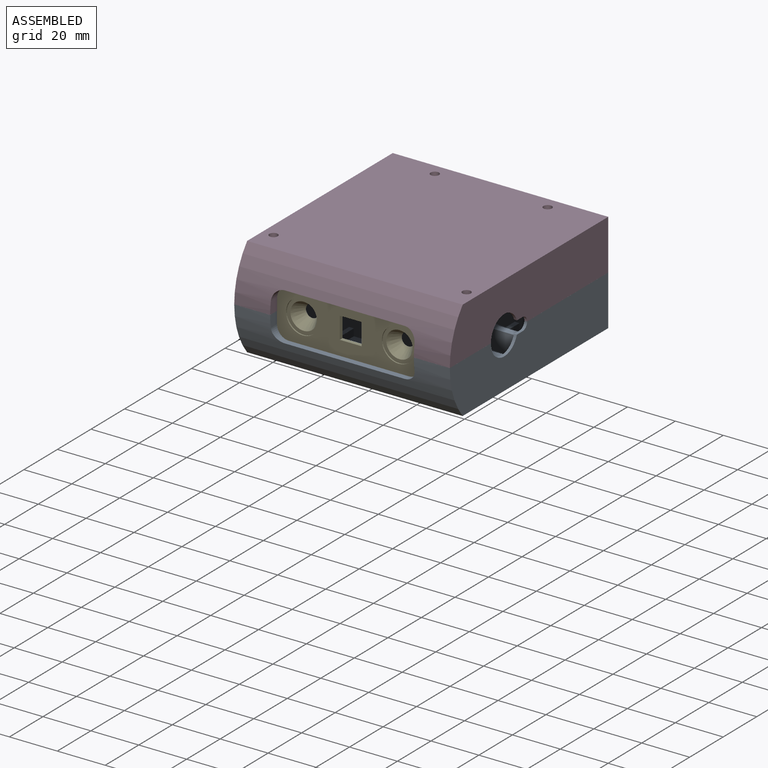
[diagram: assembled view]
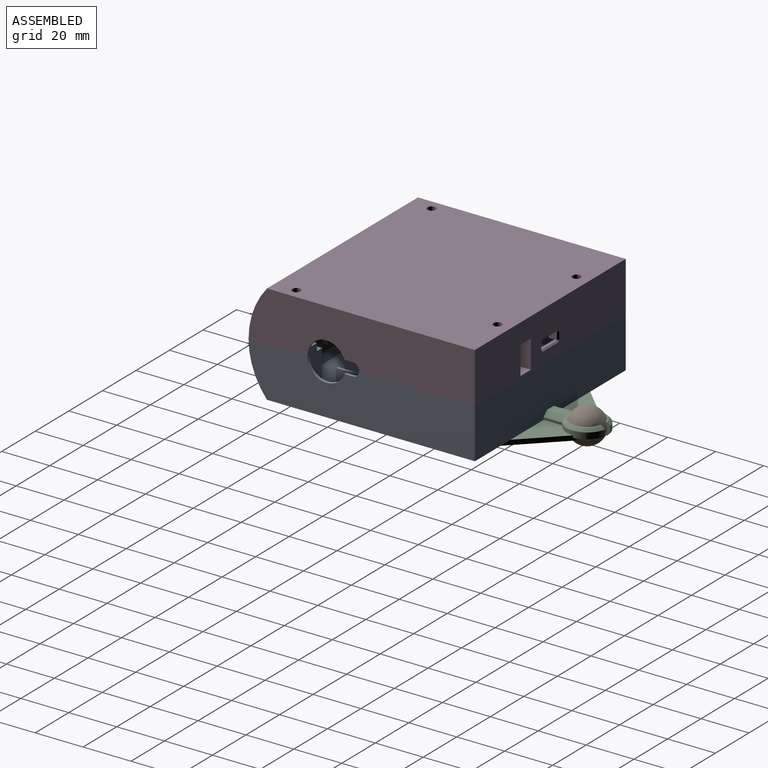
[diagram: assembled view, second angle]
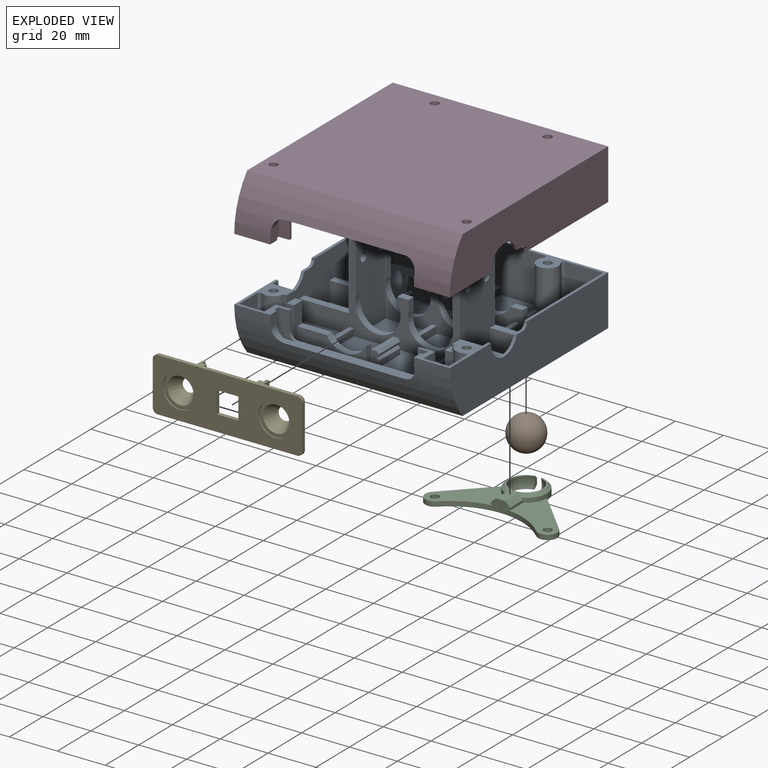
[diagram: exploded view]
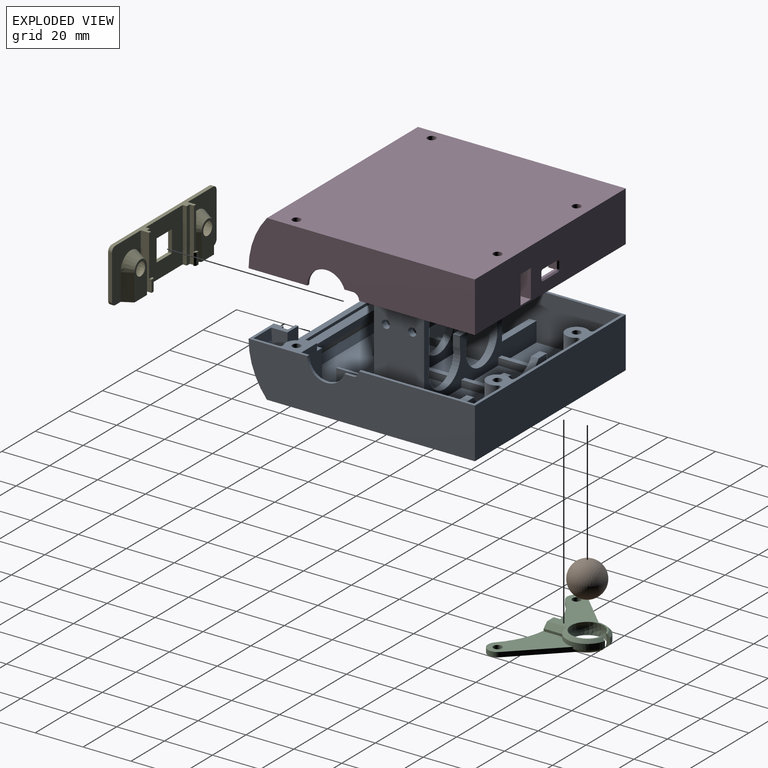
[diagram: exploded view, second angle]
ASSEMBLY  parts=5 mates=4
PART A: 187 faces, bbox 90x94.5x40 mm
  f0: plane 64.8x28.83mm, normal (0,0,1), area 1661.4mm2, adj f1,f3,f4,f19,f23,f54,f55,f59
  f1: plane 87.6x38.8mm, normal (0,-1,0), area 829mm2, adj f0,f23,f56,f58,f59,f74,f112,f123
  f2: plane 12.8x0.5mm, normal (-1,0,0), area 6.4mm2, adj f3,f172,f184,f185
  f3: plane 6x2mm, normal (0,-1,0), area 10.6mm2, adj f0,f2,f54,f55,f171,f172,f173,f185
  f4: plane 28.73x8.15mm, normal (0,-1,0), area 172mm2, adj f0,f16,f17,f18,f19,f20,f153,f154
  f5: plane 20.6x15mm, normal (0,0,1), area 309mm2, adj f7,f23,f126,f142
  f6: plane 26x0.3mm, normal (0,-1,0), area 7.3mm2, adj f127,f128,f157,f169
  f7: plane 20.6x8.15mm, normal (0,-1,0), area 167.9mm2, adj f5,f23,f125,f126
  f8: plane 26x0.3mm, normal (0,1,0), area 7.3mm2, adj f146,f147,f157,f169
  f9: plane 40.9x19.8mm, normal (0,1,0), area 265.2mm2, adj f10,f21,f24,f25,f26,f147,f148,f149
  f10: plane 19.45x15mm, normal (0,0,1), area 291.7mm2, adj f9,f13,f24,f156
  f11: plane 20.6x8.15mm, normal (0,-1,0), area 167.9mm2, adj f22,f74,f123,f124
  f12: plane 26x0.3mm, normal (0,-1,0), area 7.3mm2, adj f122,f132,f156,f168
  f13: plane 40.9x19.8mm, normal (0,-1,0), area 265.2mm2, adj f10,f21,f24,f25,f26,f128,f129,f130
  f14: plane 20.6x8.15mm, normal (0,1,0), area 167.9mm2, adj f22,f74,f123,f144
  f15: plane 26x0.3mm, normal (0,1,0), area 7.3mm2, adj f143,f151,f156,f168
  f16: plane 20.8x10.03mm, normal (0,0,1), area 157.2mm2, adj f4,f17,f18,f61,f67,f88,f89,f95
  f17: plane 16.8x4.96mm, normal (1,0,0), area 59.2mm2, adj f4,f16,f88,f90,f91,f153
  f18: plane 11.96x3mm, normal (-1,0,0), area 33.4mm2, adj f4,f16,f20,f60,f61
  f19: plane 11.96x3mm, normal (1,0,0), area 33.4mm2, adj f0,f4,f20,f60,f75
  f20: plane 11.76x2mm, normal (0,0,1), area 23.5mm2, adj f4,f18,f19,f60
  f21: plane 19.45x15mm, normal (0,0,1), area 291.7mm2, adj f9,f13,f25,f157
  f22: plane 20.6x15mm, normal (0,0,1), area 309mm2, adj f11,f14,f74,f123
  f23: plane 72.09x19.8mm, normal (-1,0,0), area 1264.3mm2, adj f0,f1,f5,f7,f29,f53,f66,f69
  f24: plane 15x3mm, normal (-1,0,0), area 45mm2, adj f9,f10,f13,f26
  f25: plane 15x3mm, normal (1,0,0), area 45mm2, adj f9,f13,f21,f26
  f26: plane 15x2mm, normal (0,0,1), area 30mm2, adj f9,f13,f24,f25
  f27: plane 20x17.25mm, normal (0,0,1), area 333.9mm2, adj f31,f38,f52,f116,f118,f134
  f28: plane 20x17.25mm, normal (0,0,1), area 333.9mm2, adj f35,f37,f52,f113,f120,f134
  f29: plane 35.25x20.8mm, normal (0,0,1), area 691.7mm2, adj f23,f32,f43,f53,f116,f117,f121,f134
  f30: plane 35.25x20.8mm, normal (0,0,1), area 691.7mm2, adj f34,f45,f57,f74,f113,f119,f121,f134
  f31: plane 9.24x3mm, normal (-1,0,0), area 27.7mm2, adj f27,f33,f116,f134
  f32: plane 8.48x3mm, normal (1,0,0), area 25.4mm2, adj f29,f33,f116,f134
  f33: plane 9.24x2mm, normal (0,0,1), area 17.5mm2, adj f31,f32,f116,f134
  f34: plane 8.48x3mm, normal (-1,0,0), area 25.4mm2, adj f30,f36,f113,f134
  f35: plane 9.24x3mm, normal (1,0,0), area 27.7mm2, adj f28,f36,f113,f134
  f36: plane 9.24x2mm, normal (0,0,1), area 17.5mm2, adj f34,f35,f113,f134
  f37: plane 17.25x3mm, normal (-1,0,0), area 51.8mm2, adj f28,f39,f52,f134
  f38: plane 17.25x3mm, normal (1,0,0), area 51.8mm2, adj f27,f39,f52,f134
  f39: plane 17.25x2mm, normal (0,0,1), area 34.5mm2, adj f37,f38,f52,f134
  f40: plane 20x15mm, normal (0,0,1), area 300mm2, adj f42,f49,f121,f135
  f41: plane 20x15mm, normal (0,0,1), area 300mm2, adj f46,f48,f121,f135
  f42: plane 15x3mm, normal (-1,0,0), area 45mm2, adj f40,f44,f121,f135
  f43: plane 15x3mm, normal (1,0,0), area 45mm2, adj f29,f44,f121,f135
  f44: plane 15x2mm, normal (0,0,1), area 30mm2, adj f42,f43,f121,f135
  f45: plane 15x3mm, normal (-1,0,0), area 45mm2, adj f30,f47,f121,f135
  f46: plane 15x3mm, normal (1,0,0), area 45mm2, adj f41,f47,f121,f135
  f47: plane 15x2mm, normal (0,0,1), area 30mm2, adj f45,f46,f121,f135
  f48: plane 15x3mm, normal (-1,0,0), area 45mm2, adj f41,f50,f121,f135
  f49: plane 15x3mm, normal (1,0,0), area 45mm2, adj f40,f50,f121,f135
  f50: plane 15x2mm, normal (0,0,1), area 30mm2, adj f48,f49,f121,f135
  f51: plane 90x86.84mm, normal (0,0,-1), area 7777.1mm2, adj f70,f71,f72,f73,f82,f87,f114,f115
  f52: plane 38.32x19.8mm, normal (0,-1,0), area 752.8mm2, adj f27,f28,f37,f38,f39,f69,f118,f120
  f53: plane 19.8x15.85mm, normal (0,-1,0), area 313.8mm2, adj f23,f29,f69,f117
  f54: plane 12.8x2.54mm, normal (-1,0,0), area 32.5mm2, adj f0,f3,f173,f184
  f55: plane 12.8x6mm, normal (1,0,0), area 76.8mm2, adj f0,f3,f171,f184
  f56: plane 20.8x15.84mm, normal (0,0,1), area 329.1mm2, adj f1,f58,f74,f90,f152,f155
  f57: plane 19.8x15.85mm, normal (0,-1,0), area 313.8mm2, adj f30,f69,f74,f119
  f58: plane 15.8x3mm, normal (-1,0,0), area 47.4mm2, adj f1,f56,f112,f155
  f59: plane 15.8x3mm, normal (1,0,0), area 47.4mm2, adj f0,f1,f112,f155
  f60: plane 66.4x3.15mm, normal (0,0.88,-0.48), area 235.2mm2, adj f18,f19,f20,f61,f62,f75,f99,f100
  f61: cylinder r=31.42mm len=20.8mm, axis (-1,0,0), area 260.5mm2, adj f16,f18,f60,f65,f67,f100
  f62: plane 66.4x14.01mm, normal (0,1,0), area 335.7mm2, adj f60,f63,f64,f65,f66,f97,f98,f99
  f63: cylinder r=3mm len=3mm, axis (0,1,0), area 5.6mm2, adj f62,f97,f103,f110
  f64: cylinder r=3mm len=3mm, axis (0,1,0), area 5.6mm2, adj f62,f98,f102,f111
  f65: plane 24.51x18.3mm, normal (0,0,1), area 131.7mm2, adj f61,f62,f67,f70,f73,f74,f76,f87
  f66: plane 24.51x18.3mm, normal (0,0,1), area 131.7mm2, adj f23,f62,f68,f71,f73,f75,f81,f82
  f67: plane 19.8x10.65mm, normal (1,0,0), area 166.8mm2, adj f16,f61,f65,f95
  f68: plane 19.8x10.65mm, normal (-1,0,0), area 166.8mm2, adj f0,f66,f75,f96
  f69: plane 90x48.36mm, normal (0,0,1), area 333.8mm2, adj f23,f52,f53,f57,f70,f71,f72,f74
  f70: plane 94.5x21mm, normal (-1,0,0), area 1819.6mm2, adj f51,f65,f69,f72,f73,f76,f77,f78
  f71: plane 94.5x21mm, normal (1,0,0), area 1819.6mm2, adj f51,f66,f69,f72,f73,f79,f80,f81
  f72: plane 90x21mm, normal (0,1,0), area 1890mm2, adj f51,f69,f70,f71
  f73: cylinder r=32.62mm len=90mm, axis (-1,0,0), area 1469.3mm2, adj f51,f65,f66,f70,f71,f101,f104,f105
  f74: plane 72.09x19.8mm, normal (1,0,0), area 1264.3mm2, adj f1,f11,f14,f22,f30,f56,f57,f65
  f75: cylinder r=31.42mm len=64.8mm, axis (-1,0,0), area 406.5mm2, adj f0,f19,f60,f66,f68,f99,f162,f163
  f76: cylinder r=7.99mm len=15.52mm, axis (-1,0,0), area 26.9mm2, adj f65,f70,f74,f77
  f77: plane 3.46x1.2mm, normal (0,0,1), area 4.1mm2, adj f70,f74,f76,f78
  f78: cylinder r=2.65mm len=2.65mm, axis (-1,0,0), area 5mm2, adj f69,f70,f74,f77
  f79: cylinder r=2.65mm len=2.65mm, axis (-1,0,0), area 5mm2, adj f23,f69,f71,f80
  f80: plane 3.46x1.2mm, normal (0,0,1), area 4.1mm2, adj f23,f71,f79,f81
  f81: cylinder r=7.99mm len=15.52mm, axis (-1,0,0), area 26.9mm2, adj f23,f66,f71,f80
  f82: cylinder r=1.75mm len=21mm, axis (0,0,1), area 230.9mm2, adj f51,f66
  f83: plane 19.8x12.3mm, normal (0,1,0), area 234.5mm2, adj f0,f23,f66,f86,f93,f94
  f84: cylinder r=4.5mm len=19.8mm, axis (0,0,1), area 172.1mm2, adj f0,f66,f85,f96
  f85: plane 19.8x4.33mm, normal (0,-1,0), area 76.7mm2, adj f0,f66,f84,f86,f93,f94
  f86: plane 16.8x4.96mm, normal (-1,0,0), area 83.4mm2, adj f0,f83,f85,f93
  f87: cylinder r=1.75mm len=21mm, axis (0,0,1), area 230.9mm2, adj f51,f65
  f88: plane 19.8x4.33mm, normal (0,-1,0), area 76.7mm2, adj f16,f17,f65,f89,f91,f92
  f89: cylinder r=4.5mm len=19.8mm, axis (0,0,1), area 172.1mm2, adj f16,f65,f88,f95
  f90: plane 19.8x12.3mm, normal (0,1,0), area 234.5mm2, adj f17,f56,f65,f74,f91,f92,f152
  f91: plane 4.96x3mm, normal (0,0,1), area 14.9mm2, adj f17,f88,f90,f92
  f92: plane 4.96x3mm, normal (1,0,0), area 14.9mm2, adj f65,f88,f90,f91
  f93: plane 4.96x3mm, normal (0,0,1), area 14.9mm2, adj f83,f85,f86,f94
  f94: plane 4.96x3mm, normal (-1,0,0), area 14.9mm2, adj f66,f83,f85,f93
  f95: cylinder r=1mm len=19.8mm, axis (0,0,1), area 40.4mm2, adj f16,f65,f67,f89
  f96: cylinder r=1mm len=19.8mm, axis (0,0,1), area 40.4mm2, adj f0,f66,f68,f84
  f97: plane 8.2x1.2mm, normal (1,0,0), area 9.8mm2, adj f62,f63,f65,f103
  f98: plane 8.2x1.2mm, normal (-1,0,0), area 9.8mm2, adj f62,f64,f66,f102
  f99: plane 17.15x6.8mm, normal (1,0,0), area 85.8mm2, adj f60,f62,f66,f75
  f100: plane 17.15x6.8mm, normal (-1,0,0), area 85.8mm2, adj f60,f61,f62,f65
  f101: plane 50x2.53mm, normal (0,0,1), area 126.5mm2, adj f73,f106,f158,f159
  f102: plane 11.2x7.5mm, normal (0,-1,0), area 52.3mm2, adj f64,f66,f98,f107,f108
  f103: plane 11.2x7.5mm, normal (0,-1,0), area 52.3mm2, adj f63,f65,f97,f108,f109
  f104: plane 5x4.1mm, normal (1,0,0), area 19.9mm2, adj f65,f73,f106,f158
  f105: plane 5x4.1mm, normal (-1,0,0), area 19.9mm2, adj f66,f73,f106,f159
  f106: plane 62.4x11.2mm, normal (0,1,0), area 109.6mm2, adj f65,f66,f101,f104,f105,f107,f108,f109
  f107: plane 11.2x2.7mm, normal (-1,0,0), area 30.2mm2, adj f66,f102,f106,f108
  f108: plane 62.4x3.9mm, normal (0,0,1), area 225.4mm2, adj f62,f102,f103,f106,f107,f109,f110,f111
  f109: plane 11.2x2.7mm, normal (1,0,0), area 30.2mm2, adj f65,f103,f106,f108
  f110: plane 1.2x0mm, normal (1,0,0), area 0mm2, adj f62,f63,f108
  f111: plane 1.2x0mm, normal (-1,0,0), area 0mm2, adj f62,f64,f108
  f112: plane 15.8x2mm, normal (0,0,1), area 31.6mm2, adj f1,f58,f59,f155
  f113: cylinder r=4.5mm len=19.8mm, axis (0,0,1), area 388.2mm2, adj f28,f30,f34,f35,f36,f69,f119,f120
  f114: cylinder r=1.75mm len=21mm, axis (0,0,1), area 230.9mm2, adj f51,f69
  f115: cylinder r=1.75mm len=21mm, axis (0,0,1), area 230.9mm2, adj f51,f69
  f116: cylinder r=4.5mm len=19.8mm, axis (0,0,1), area 388.2mm2, adj f27,f29,f31,f32,f33,f69,f117,f118
  f117: cylinder r=1mm len=19.8mm, axis (0,0,1), area 43.9mm2, adj f29,f53,f69,f116
  f118: cylinder r=1mm len=19.8mm, axis (0,0,1), area 43.9mm2, adj f27,f52,f69,f116
  f119: cylinder r=1mm len=19.8mm, axis (0,0,1), area 43.9mm2, adj f30,f57,f69,f113
  f120: cylinder r=1mm len=19.8mm, axis (0,0,1), area 43.9mm2, adj f28,f52,f69,f113
  f121: plane 87.6x38.8mm, normal (0,1,0), area 817mm2, adj f23,f29,f30,f40,f41,f42,f43,f44
  f122: plane 23.64x3mm, normal (1,0,0), area 70.9mm2, adj f12,f121,f132,f168
  f123: plane 38.8x21mm, normal (-1,0,0), area 747.7mm2, adj f1,f11,f14,f22,f121,f124,f144,f168
  f124: plane 20.6x3mm, normal (0,0,1), area 61.8mm2, adj f11,f74,f121,f123
  f125: plane 20.6x3mm, normal (0,0,1), area 61.8mm2, adj f7,f23,f121,f126
  f126: plane 38.8x21mm, normal (1,0,0), area 747.7mm2, adj f1,f5,f7,f121,f125,f142,f145,f169
  f127: plane 23.64x3mm, normal (-1,0,0), area 70.9mm2, adj f6,f121,f128,f169
  f128: cylinder r=9.45mm len=18.9mm, axis (0,-1,0), area 103.4mm2, adj f6,f13,f121,f127,f129
  f129: plane 4.64x3mm, normal (1,0,0), area 13.9mm2, adj f13,f121,f128,f130
  f130: plane 4.7x3mm, normal (0,0,1), area 14.1mm2, adj f13,f121,f129,f131
  f131: plane 3x2.22mm, normal (-1,0,0), area 6.7mm2, adj f13,f121,f130,f132
  f132: cylinder r=9.45mm len=18.9mm, axis (0,-1,0), area 111.3mm2, adj f12,f13,f121,f122,f131
  f133: plane 4.97x3mm, normal (0,0,1), area 14.9mm2, adj f134,f135,f139,f141
  f134: plane 48.4x8.15mm, normal (0,1,0), area 264.3mm2, adj f27,f28,f29,f30,f31,f32,f33,f34
  f135: plane 48.4x8.15mm, normal (0,-1,0), area 264.3mm2, adj f29,f30,f40,f41,f42,f43,f44,f45
  f136: plane 8.15x3mm, normal (1,0,0), area 24.4mm2, adj f29,f134,f135,f140
  f137: cylinder r=9.45mm len=16.45mm, axis (0,-1,0), area 59.9mm2, adj f134,f135,f138,f140
  f138: plane 5.55x3mm, normal (0,0,1), area 16.6mm2, adj f134,f135,f137,f139
  f139: cylinder r=9.45mm len=16.45mm, axis (0,-1,0), area 59.9mm2, adj f133,f134,f135,f138
  f140: plane 4.97x3mm, normal (0,0,1), area 14.9mm2, adj f134,f135,f136,f137
  f141: plane 8.15x3mm, normal (-1,0,0), area 24.4mm2, adj f30,f133,f134,f135
  f142: plane 20.6x8.15mm, normal (0,1,0), area 167.9mm2, adj f5,f23,f126,f145
  f143: plane 23.64x3mm, normal (1,0,0), area 70.9mm2, adj f1,f15,f151,f168
  f144: plane 20.6x3mm, normal (0,0,1), area 61.8mm2, adj f1,f14,f74,f123
  f145: plane 20.6x3mm, normal (0,0,1), area 61.8mm2, adj f1,f23,f126,f142
  f146: plane 23.64x3mm, normal (-1,0,0), area 70.9mm2, adj f1,f8,f147,f169
  f147: cylinder r=9.45mm len=18.9mm, axis (0,-1,0), area 103.4mm2, adj f1,f8,f9,f146,f148
  f148: plane 4.64x3mm, normal (1,0,0), area 13.9mm2, adj f1,f9,f147,f149
  f149: plane 4.7x3mm, normal (0,0,1), area 14.1mm2, adj f1,f9,f148,f150
  f150: plane 3x2.22mm, normal (-1,0,0), area 6.7mm2, adj f1,f9,f149,f151
  f151: cylinder r=9.45mm len=18.9mm, axis (0,-1,0), area 111.3mm2, adj f1,f9,f15,f143,f150
  f152: plane 8.15x0.04mm, normal (-1,0,0), area 0.3mm2, adj f56,f90,f153,f155
  f153: plane 12.27x3mm, normal (0,0,1), area 36.8mm2, adj f4,f17,f152,f154,f155
  f154: cylinder r=9.45mm len=16.45mm, axis (0,-1,0), area 59.9mm2, adj f4,f153,f155,f160
  f155: plane 28.73x8.15mm, normal (0,1,0), area 172mm2, adj f0,f56,f58,f59,f112,f152,f153,f154
  f156: plane 38.8x15mm, normal (1,0,0), area 563.8mm2, adj f9,f10,f12,f13,f15,f168,f174,f175
  f157: plane 38.8x15mm, normal (-1,0,0), area 563.8mm2, adj f6,f8,f9,f13,f21,f169,f176,f177
  f158: cylinder r=5mm len=5mm, axis (0,1,0), area 24.5mm2, adj f73,f101,f104,f106
  f159: cylinder r=5mm len=5mm, axis (0,-1,0), area 24.5mm2, adj f73,f101,f105,f106
  f160: plane 8.15x3mm, normal (1,0,0), area 24.5mm2, adj f0,f4,f154,f155
  f161: plane 6x3mm, normal (0,-1,0), area 16.5mm2, adj f0,f170,f178,f179,f180,f181,f182,f186
  f162: plane 2x0.42mm, normal (0,0,-1), area 0.8mm2, adj f60,f75,f163,f164
  f163: plane 0.42x0.35mm, normal (1,0,0), area 0.1mm2, adj f60,f75,f162
  f164: plane 0.42x0.35mm, normal (-1,0,0), area 0.1mm2, adj f60,f75,f162
  f165: plane 2x0.42mm, normal (0,0,-1), area 0.8mm2, adj f60,f75,f166,f167
  f166: plane 0.42x0.35mm, normal (-1,0,0), area 0.1mm2, adj f60,f75,f165
  f167: plane 0.42x0.35mm, normal (1,0,0), area 0.1mm2, adj f60,f75,f165
  f168: plane 21x3.05mm, normal (0,0,1), area 59.6mm2, adj f1,f12,f15,f121,f122,f123,f143,f156
  f169: plane 21x3.05mm, normal (0,0,1), area 59.6mm2, adj f1,f6,f8,f121,f126,f127,f146,f157
  f170: plane 12.8x2mm, normal (0,0,1), area 25.6mm2, adj f161,f178,f183,f186
  f171: plane 12.8x1mm, normal (0,0,1), area 12.8mm2, adj f3,f55,f184,f185
  f172: plane 12.8x1.15mm, normal (-0.77,0,-0.64), area 19.2mm2, adj f2,f3,f173,f184
  f173: plane 12.8x0.97mm, normal (-0.64,0,0.77), area 16.2mm2, adj f3,f54,f172,f184
  f174: cylinder r=1.7mm len=3.4mm, axis (-1,0,0), area 29.4mm2, adj f123,f156
  f175: cylinder r=1.7mm len=3.4mm, axis (-1,0,0), area 29.4mm2, adj f123,f156
  f176: cylinder r=1.7mm len=3.4mm, axis (1,0,0), area 29.4mm2, adj f126,f157
  f177: cylinder r=1.7mm len=3.4mm, axis (1,0,0), area 29.4mm2, adj f126,f157
  f178: plane 12.8x6mm, normal (-1,0,0), area 76.8mm2, adj f0,f161,f170,f183
  f179: plane 12.8x1mm, normal (0.67,0,0.75), area 17.2mm2, adj f161,f180,f181,f183
  f180: plane 12.8x2.49mm, normal (1,0,0), area 31.8mm2, adj f0,f161,f179,f183
  f181: plane 12.8x1.12mm, normal (0.75,0,-0.67), area 19.2mm2, adj f161,f179,f182,f183
  f182: plane 12.8x0.5mm, normal (1,0,0), area 6.4mm2, adj f161,f181,f183,f186
  f183: plane 6x3mm, normal (0,1,0), area 16.5mm2, adj f0,f170,f178,f179,f180,f181,f182,f186
  f184: plane 6x2mm, normal (0,1,0), area 10.6mm2, adj f0,f2,f54,f55,f171,f172,f173,f185
  f185: plane 12.8x1mm, normal (-0.71,0,0.71), area 18.1mm2, adj f2,f3,f171,f184
  f186: plane 12.8x1mm, normal (0.71,0,0.71), area 18.1mm2, adj f161,f170,f182,f183
PART B: 1 faces, bbox 14.4x14.4x14.4 mm
  f0: sphere r=7.2mm, area 651.4mm2
PART C: 25 faces, bbox 55.2x33.5x14.5 mm
  f0: plane 27.56x24.93mm, normal (0,0,1), area 260mm2, adj f1,f2,f3,f10,f11,f14,f15
  f1: plane 19.47x19.13mm, normal (0.71,0.7,0), area 51.9mm2, adj f0,f2,f10,f12,f24
  f2: cylinder r=4mm len=6.8mm, axis (0,0,1), area 24.9mm2, adj f0,f1,f3,f12
  f3: cylinder r=29.95mm len=41.56mm, axis (0,0,1), area 91.9mm2, adj f0,f2,f4,f12,f13
  f4: cylinder r=4mm len=6.8mm, axis (0,0,1), area 24.9mm2, adj f3,f5,f12,f13
  f5: plane 19.47x19.13mm, normal (-0.71,0.7,0), area 51.9mm2, adj f4,f6,f12,f13,f21
  f6: cylinder r=8.6mm len=16.45mm, axis (0,0,1), area 48.4mm2, adj f5,f7,f13,f16,f18,f21,f22
  f7: plane 5.02x1.9mm, normal (1,0,0), area 6.4mm2, adj f6,f12,f17,f20,f21,f22
  f8: plane 5.02x1.9mm, normal (-1,0,0), area 6.4mm2, adj f10,f12,f17,f20,f23,f24
  f9: cylinder r=1.75mm len=3.5mm, axis (0,0,1), area 22mm2, adj f12,f13
  f10: cylinder r=8.6mm len=16.45mm, axis (0,0,1), area 48.4mm2, adj f0,f1,f8,f14,f19,f23,f24
  f11: cylinder r=1.75mm len=3.5mm, axis (0,0,1), area 22mm2, adj f0,f12
  f12: plane 55.11x32.18mm, normal (0,0,-1), area 635.7mm2, adj f1,f2,f3,f4,f5,f7,f8,f9
  f13: plane 27.56x24.93mm, normal (0,0,1), area 260mm2, adj f3,f4,f5,f6,f9,f15,f16
  f14: plane 7.81x1mm, normal (1,0,0), area 7.8mm2, adj f0,f10,f15,f19
  f15: plane 8x3mm, normal (0,-1,0), area 20mm2, adj f0,f13,f14,f16,f17,f18,f19
  f16: plane 7.81x1mm, normal (-1,0,0), area 7.8mm2, adj f6,f13,f15,f18
  f17: plane 22.67x14.8mm, normal (0,0,1), area 59.3mm2, adj f7,f8,f15,f18,f19,f20,f22,f23
  f18: plane 8.35x2.05mm, normal (-0.71,0,0.71), area 22mm2, adj f6,f15,f16,f17,f22
  f19: plane 8.35x2.05mm, normal (0.71,0,0.71), area 22mm2, adj f10,f14,f15,f17,f23
  f20: sphere r=7.2mm, area 210.8mm2, adj f7,f8,f12,f17
  f21: cone r=7.4mm half-angle=45deg, axis (0,0,1), area 17.7mm2, adj f5,f6,f7,f12
  f22: cone r=8.6mm half-angle=45deg, axis (0,0,-1), area 35.6mm2, adj f6,f7,f17,f18
  f23: cone r=8.6mm half-angle=45deg, axis (0,0,-1), area 35.6mm2, adj f8,f10,f17,f19
  f24: cone r=7.4mm half-angle=45deg, axis (0,0,1), area 17.7mm2, adj f1,f8,f10,f12
PART D: 130 faces, bbox 90x94.5x21 mm
  f0: plane 20.5x2.4mm, normal (0,-1,0), area 41.1mm2, adj f78,f84,f85,f90,f91,f92,f93,f112
  f1: plane 90x21mm, normal (0,1,0), area 1767.4mm2, adj f13,f14,f15,f16,f80,f81,f82,f83
  f2: plane 87.6x85.03mm, normal (0,0,-1), area 6575.1mm2, adj f3,f4,f5,f6,f7,f12,f19,f20
  f3: plane 19.8x15.85mm, normal (0,-1,0), area 313.8mm2, adj f2,f13,f20,f108
  f4: plane 19.8x1.66mm, normal (0,-1,0), area 32.9mm2, adj f2,f13,f79,f110
  f5: plane 19.8x15.85mm, normal (0,-1,0), area 313.8mm2, adj f2,f7,f13,f109
  f6: plane 19.8x10.66mm, normal (-1,0,0), area 166.7mm2, adj f2,f8,f12,f111
  f7: plane 72.1x19.8mm, normal (1,0,0), area 1257.9mm2, adj f2,f5,f10,f13,f24,f25,f26,f52
  f8: plane 24.5x18.3mm, normal (0,0,-1), area 120.9mm2, adj f6,f11,f12,f16,f17,f20,f21,f27
  f9: plane 15x0.01mm, normal (0,-0.34,0.94), area 0.1mm2, adj f10,f15,f18,f38
  f10: plane 24.5x18.3mm, normal (0,0,-1), area 120.9mm2, adj f7,f9,f11,f12,f15,f19,f26,f28
  f11: plane 66.4x13.39mm, normal (0,1,0), area 291.1mm2, adj f8,f10,f27,f28,f29,f30,f31,f42
  f12: cylinder r=31.29mm len=87.6mm, axis (1,0,0), area 698.2mm2, adj f2,f6,f8,f10,f19,f27,f28,f42
  f13: plane 90x48.35mm, normal (0,0,-1), area 473.2mm2, adj f1,f3,f4,f5,f7,f15,f16,f20
  f14: plane 90x86.8mm, normal (0,0,1), area 7773.1mm2, adj f1,f15,f16,f18,f62,f63,f74,f106
  f15: plane 94.5x21mm, normal (-1,0,0), area 1819mm2, adj f1,f9,f10,f13,f14,f18,f24,f25
  f16: plane 94.5x21mm, normal (1,0,0), area 1819mm2, adj f1,f8,f13,f14,f17,f18,f21,f22
  f17: plane 15x0.01mm, normal (0,-0.34,0.94), area 0.1mm2, adj f8,f16,f18,f34
  f18: cylinder r=32.49mm len=90mm, axis (1,0,0), area 1456.2mm2, adj f9,f14,f15,f16,f17,f34,f35,f36
  f19: plane 19.8x10.66mm, normal (1,0,0), area 166.7mm2, adj f2,f10,f12,f107
  f20: plane 72.1x19.8mm, normal (-1,0,0), area 1257.9mm2, adj f2,f3,f8,f13,f21,f22,f23,f43
  f21: cylinder r=8mm len=15.55mm, axis (1,0,0), area 26.9mm2, adj f8,f16,f20,f22
  f22: plane 3.45x1.2mm, normal (0,0,-1), area 4.1mm2, adj f16,f20,f21,f23
  f23: cylinder r=2.65mm len=2.65mm, axis (1,0,0), area 5mm2, adj f13,f16,f20,f22
  f24: cylinder r=2.65mm len=2.65mm, axis (1,0,0), area 5mm2, adj f7,f13,f15,f25
  f25: plane 3.45x1.2mm, normal (0,0,-1), area 4.1mm2, adj f7,f15,f24,f26
  f26: cylinder r=8mm len=15.55mm, axis (1,0,0), area 26.9mm2, adj f7,f10,f15,f25
  f27: plane 16.83x6.79mm, normal (1,0,0), area 84.5mm2, adj f8,f11,f12,f42
  f28: plane 16.83x6.79mm, normal (-1,0,0), area 84.5mm2, adj f10,f11,f12,f42
  f29: plane 11.2x1.2mm, normal (1,0,0), area 13.4mm2, adj f10,f11,f31,f33
  f30: plane 11.2x1.2mm, normal (-1,0,0), area 13.4mm2, adj f8,f11,f31,f32
  f31: plane 62.4x3.8mm, normal (0,0,-1), area 226.3mm2, adj f11,f29,f30,f32,f33,f39,f40,f41
  f32: plane 11.2x4.5mm, normal (0,-1,0), area 50.4mm2, adj f8,f30,f31,f40
  f33: plane 11.2x4.5mm, normal (0,-1,0), area 50.4mm2, adj f10,f29,f31,f41
  f34: plane 5x4.2mm, normal (-1,0,0), area 20.3mm2, adj f8,f17,f18,f35,f39
  f35: cylinder r=5mm len=5mm, axis (0,-1,0), area 24.4mm2, adj f18,f34,f36,f39
  f36: plane 50x2.62mm, normal (0,0,-1), area 130.9mm2, adj f18,f35,f37,f39
  f37: cylinder r=5mm len=5mm, axis (0,-1,0), area 24.4mm2, adj f18,f36,f38,f39
  f38: plane 5x4.2mm, normal (1,0,0), area 20.3mm2, adj f9,f10,f18,f37,f39
  f39: plane 62.4x11.2mm, normal (0,1,0), area 109.6mm2, adj f8,f10,f31,f34,f35,f36,f37,f38
  f40: plane 11.2x2.6mm, normal (-1,0,0), area 29.1mm2, adj f8,f31,f32,f39
  f41: plane 11.2x2.6mm, normal (1,0,0), area 29.1mm2, adj f10,f31,f33,f39
  f42: plane 66.4x3.44mm, normal (0,0.88,0.48), area 260.3mm2, adj f11,f12,f27,f28
  f43: plane 20.6x3.37mm, normal (0,0,-1), area 69.4mm2, adj f20,f44,f45,f46
  f44: plane 20.6x8.2mm, normal (0,-1,0), area 168.9mm2, adj f2,f20,f43,f46
  f45: plane 20.6x8.2mm, normal (0,1,0), area 168.9mm2, adj f2,f20,f43,f46
  f46: plane 8.2x3.37mm, normal (-1,0,0), area 27.6mm2, adj f2,f43,f44,f45
  f47: plane 20.6x3.37mm, normal (0,0,-1), area 69.4mm2, adj f20,f48,f49,f50
  f48: plane 20.6x8.2mm, normal (0,-1,0), area 168.9mm2, adj f2,f20,f47,f50
  f49: plane 20.6x8.2mm, normal (0,1,0), area 168.9mm2, adj f2,f20,f47,f50
  f50: plane 8.2x3.37mm, normal (-1,0,0), area 27.6mm2, adj f2,f47,f48,f49
  f51: plane 19.8x4.15mm, normal (0,1,0), area 82.1mm2, adj f2,f8,f20,f61
  f52: plane 20.6x3.37mm, normal (0,0,-1), area 69.4mm2, adj f7,f53,f54,f55
  f53: plane 20.6x8.2mm, normal (0,-1,0), area 168.9mm2, adj f2,f7,f52,f55
  f54: plane 20.6x8.2mm, normal (0,1,0), area 168.9mm2, adj f2,f7,f52,f55
  f55: plane 8.2x3.37mm, normal (1,0,0), area 27.6mm2, adj f2,f52,f53,f54
  f56: plane 20.6x3.37mm, normal (0,0,-1), area 69.4mm2, adj f7,f57,f58,f59
  f57: plane 20.6x8.2mm, normal (0,-1,0), area 168.9mm2, adj f2,f7,f56,f59
  f58: plane 20.6x8.2mm, normal (0,1,0), area 168.9mm2, adj f2,f7,f56,f59
  f59: plane 8.2x3.37mm, normal (1,0,0), area 27.6mm2, adj f2,f56,f57,f58
  f60: plane 19.8x4.15mm, normal (0,1,0), area 82.1mm2, adj f2,f7,f10,f105
  f61: cylinder r=4.49mm len=19.8mm, axis (0,0,-1), area 308.4mm2, adj f2,f8,f51,f111
  f62: cylinder r=1.75mm len=21mm, axis (0,0,-1), area 231.5mm2, adj f8,f14
  f63: cylinder r=1.75mm len=21mm, axis (0,0,-1), area 230.9mm2, adj f13,f14
  f64: cylinder r=4.5mm len=19.8mm, axis (0,0,-1), area 394.8mm2, adj f2,f13,f109,f110
  f65: cylinder r=1.05mm len=6.8mm, axis (0,0,-1), area 44.9mm2, adj f67,f68
  f66: cylinder r=2.5mm len=5.3mm, axis (0,0,-1), area 83.3mm2, adj f67,f114
  f67: plane 5x5mm, normal (0,0,-1), area 16.2mm2, adj f65,f66
  f68: plane 2.1x2.1mm, normal (0,0,-1), area 3.5mm2, adj f65
  f69: cylinder r=1.05mm len=6.8mm, axis (0,0,-1), area 44.9mm2, adj f71,f72
  f70: cylinder r=2.5mm len=5.3mm, axis (0,0,-1), area 83.3mm2, adj f71,f116
  f71: plane 5x5mm, normal (0,0,-1), area 16.2mm2, adj f69,f70
  f72: plane 2.1x2.1mm, normal (0,0,-1), area 3.5mm2, adj f69
  f73: cylinder r=4.5mm len=19.8mm, axis (0,0,-1), area 302.9mm2, adj f2,f13,f77,f108
  f74: cylinder r=1.75mm len=21mm, axis (0,0,-1), area 230.9mm2, adj f13,f14
  f75: plane 5.25x3.5mm, normal (0,-1,0), area 18.4mm2, adj f78,f89,f90,f91
  f76: plane 27.5x19.8mm, normal (0,-1,0), area 388.8mm2, adj f2,f13,f78,f79,f84,f85,f86,f87
  f77: plane 19.8x9.39mm, normal (0,-1,0), area 112.7mm2, adj f2,f13,f73,f78,f80,f81,f82,f83
  f78: plane 19.8x6mm, normal (-1,0,0), area 71.4mm2, adj f0,f2,f13,f75,f76,f77,f88,f89
  f79: plane 19.8x3mm, normal (-1,0,0), area 59.4mm2, adj f2,f4,f13,f76
  f80: plane 7.2x6.2mm, normal (0,0,1), area 44.6mm2, adj f1,f77,f81,f83
  f81: plane 11.8x7.2mm, normal (-1,0,0), area 85mm2, adj f1,f77,f80,f82
  f82: plane 7.2x6.2mm, normal (0,0,-1), area 44.6mm2, adj f1,f77,f81,f83
  f83: plane 11.8x7.2mm, normal (1,0,0), area 85mm2, adj f1,f77,f80,f82
  f84: plane 5.75x3mm, normal (0,0,-1), area 17.3mm2, adj f0,f76,f85,f93
  f85: plane 3.6x3.5mm, normal (1,0,0), area 12.1mm2, adj f0,f76,f84,f86,f95,f120,f121,f126
  f86: plane 5.75x3mm, normal (0,0,1), area 17.3mm2, adj f76,f85,f87,f95
  f87: plane 3x2mm, normal (1,0,0), area 6mm2, adj f76,f86,f88,f95
  f88: plane 20.5x3mm, normal (0,0,-1), area 61.5mm2, adj f76,f78,f87,f95
  f89: plane 5.25x3mm, normal (0,0,1), area 15.8mm2, adj f75,f78,f90,f95
  f90: plane 3.6x3.5mm, normal (-1,0,0), area 12.1mm2, adj f0,f75,f89,f91,f95,f118,f119,f125
  f91: plane 5.25x3mm, normal (0,0,-1), area 15.8mm2, adj f0,f75,f78,f90
  f92: plane 20.5x3mm, normal (0,0,1), area 61.5mm2, adj f0,f76,f78,f93
  f93: plane 3x2mm, normal (1,0,0), area 6mm2, adj f0,f76,f84,f92
  f94: cylinder r=2.65mm len=5.3mm, axis (0,1,0), area 50mm2, adj f76,f96
  f95: plane 20.5x2.4mm, normal (0,-1,0), area 41.1mm2, adj f78,f85,f86,f87,f88,f89,f90,f113
  f96: plane 5.3x5.3mm, normal (0,-1,0), area 22.1mm2, adj f94
  f97: cylinder r=1.05mm len=6.8mm, axis (0,0,-1), area 44.9mm2, adj f99,f100
  f98: cylinder r=2.5mm len=5.3mm, axis (0,0,-1), area 83.3mm2, adj f99,f115
  f99: plane 5x5mm, normal (0,0,-1), area 16.2mm2, adj f97,f98
  f100: plane 2.1x2.1mm, normal (0,0,-1), area 3.5mm2, adj f97
  f101: cylinder r=1.05mm len=6.8mm, axis (0,0,-1), area 44.9mm2, adj f103,f104
  f102: cylinder r=2.5mm len=5.3mm, axis (0,0,-1), area 83.3mm2, adj f103,f117
  f103: plane 5x5mm, normal (0,0,-1), area 16.2mm2, adj f101,f102
  f104: plane 2.1x2.1mm, normal (0,0,-1), area 3.5mm2, adj f101
  f105: cylinder r=4.49mm len=19.8mm, axis (0,0,-1), area 308.4mm2, adj f2,f10,f60,f107
  f106: cylinder r=1.75mm len=21mm, axis (0,0,-1), area 231.5mm2, adj f10,f14
  f107: cylinder r=1mm len=19.8mm, axis (0,0,-1), area 40.4mm2, adj f2,f10,f19,f105
  f108: cylinder r=1mm len=19.8mm, axis (0,0,-1), area 43.9mm2, adj f2,f3,f13,f73
  f109: cylinder r=1mm len=19.8mm, axis (0,0,-1), area 43.9mm2, adj f2,f5,f13,f64
  f110: cylinder r=1mm len=19.8mm, axis (0,0,-1), area 43.9mm2, adj f2,f4,f13,f64
  f111: cylinder r=1mm len=19.8mm, axis (0,0,-1), area 40.4mm2, adj f2,f6,f8,f61
  f112: plane 8.7x0.6mm, normal (0,0,1), area 5.2mm2, adj f0,f118,f121,f122
  f113: plane 8.7x0.6mm, normal (0,0,-1), area 5.2mm2, adj f95,f119,f120,f129
  f114: cone r=2.5mm half-angle=45deg, axis (0,0,1), area 43.3mm2, adj f2,f66
  f115: cone r=2.5mm half-angle=45deg, axis (0,0,1), area 43.3mm2, adj f2,f98
  f116: cone r=2.5mm half-angle=45deg, axis (0,0,1), area 43.3mm2, adj f2,f70
  f117: cone r=2.5mm half-angle=45deg, axis (0,0,1), area 43.3mm2, adj f2,f102
  f118: cylinder r=0.4mm len=0.6mm, axis (0,1,0), area 0.4mm2, adj f0,f90,f112,f123
  f119: cylinder r=0.4mm len=0.6mm, axis (0,-1,0), area 0.4mm2, adj f90,f95,f113,f127
  f120: cylinder r=0.4mm len=0.6mm, axis (0,1,0), area 0.4mm2, adj f85,f95,f113,f128
  f121: cylinder r=0.4mm len=0.6mm, axis (0,-1,0), area 0.4mm2, adj f0,f85,f112,f124
  f122: plane 8.7x0.6mm, normal (0,0.71,0.71), area 7.4mm2, adj f1,f112,f123,f124
  f123: cone r=1mm half-angle=45deg, axis (0,1,0), area 0.9mm2, adj f1,f118,f122,f125
  f124: cone r=1mm half-angle=45deg, axis (0,1,0), area 0.9mm2, adj f1,f121,f122,f126
  f125: plane 2.7x0.6mm, normal (-0.71,0.71,0), area 2.3mm2, adj f1,f90,f123,f127
  f126: plane 2.7x0.6mm, normal (0.71,0.71,0), area 2.3mm2, adj f1,f85,f124,f128
  f127: cone r=1mm half-angle=45deg, axis (0,1,0), area 0.9mm2, adj f1,f119,f125,f129
  f128: cone r=1mm half-angle=45deg, axis (0,1,0), area 0.9mm2, adj f1,f120,f126,f129
  f129: plane 8.7x0.6mm, normal (0,0.71,-0.71), area 7.4mm2, adj f1,f113,f127,f128
PART E: 54 faces, bbox 62.4x6.1x22.4 mm
  f0: plane 58.4x6.1mm, normal (0,0,-1), area 192.3mm2, adj f1,f2,f11,f12,f22,f23,f25,f26
  f1: plane 22.4x17.2mm, normal (0,1,0), area 192.8mm2, adj f0,f6,f13,f18,f30,f34,f35,f36
  f2: plane 22.4x22mm, normal (0,1,0), area 410mm2, adj f0,f14,f15,f16,f17,f18,f25,f31
  f3: cylinder r=2.7mm len=5.4mm, axis (0,-1,0), area 3.1mm2, adj f4,f53
  f4: cone r=2.7mm half-angle=28.8deg, axis (0,-1,0), area 149.8mm2, adj f3,f5
  f5: plane 14x14mm, normal (0,-1,0), area 58.9mm2, adj f4,f20
  f6: cone r=3.7mm half-angle=28.8deg, axis (0,-1,0), area 72.6mm2, adj f1,f34,f35,f53
  f7: cylinder r=2.7mm len=5.4mm, axis (0,-1,0), area 3.1mm2, adj f8,f52
  f8: cone r=2.7mm half-angle=28.8deg, axis (0,-1,0), area 149.8mm2, adj f7,f9
  f9: plane 14x14mm, normal (0,-1,0), area 58.9mm2, adj f8,f21
  f10: cone r=3.7mm half-angle=28.8deg, axis (0,-1,0), area 72.6mm2, adj f12,f32,f33,f52
  f11: plane 62.4x22.4mm, normal (0,-1,0), area 1003.6mm2, adj f0,f13,f14,f15,f16,f17,f18,f19
  f12: plane 22.4x17.2mm, normal (0,1,0), area 192.8mm2, adj f0,f10,f18,f19,f26,f32,f33,f38
  f13: plane 18.4x1.6mm, normal (-1,0,0), area 29.4mm2, adj f1,f11,f36,f37
  f14: plane 9.1x1.6mm, normal (0,0,-1), area 14.6mm2, adj f2,f11,f15,f16
  f15: plane 9.1x1.6mm, normal (-1,0,0), area 14.6mm2, adj f2,f11,f14,f17
  f16: plane 9.1x1.6mm, normal (1,0,0), area 14.6mm2, adj f2,f11,f14,f17
  f17: plane 9.1x1.6mm, normal (0,0,1), area 14.6mm2, adj f2,f11,f15,f16
  f18: plane 58.4x5.1mm, normal (0,0,1), area 108.1mm2, adj f1,f2,f11,f12,f22,f23,f24,f25
  f19: plane 18.4x1.6mm, normal (1,0,0), area 29.4mm2, adj f11,f12,f38,f39
  f20: cylinder r=7mm len=14mm, axis (0,-1,0), area 22mm2, adj f5,f11
  f21: cylinder r=7mm len=14mm, axis (0,-1,0), area 22mm2, adj f9,f11
  f22: plane 22.4x1.75mm, normal (0,1,0), area 39.2mm2, adj f0,f18,f23,f25
  f23: plane 22.4x1.8mm, normal (-1,0,0), area 40.3mm2, adj f0,f18,f22,f24,f40
  f24: plane 17.4x1.25mm, normal (0,1,0), area 21.8mm2, adj f18,f23,f26,f43
  f25: plane 22.4x1.7mm, normal (-1,0,0), area 38.1mm2, adj f0,f2,f18,f22
  f26: plane 22.4x4.5mm, normal (1,0,0), area 83.4mm2, adj f0,f12,f18,f24,f42,f43
  f27: plane 17.4x1.25mm, normal (0,1,0), area 21.8mm2, adj f18,f28,f30,f47
  f28: plane 22.4x1.8mm, normal (1,0,0), area 40.3mm2, adj f0,f18,f27,f29,f44
  f29: plane 22.4x1.75mm, normal (0,1,0), area 39.2mm2, adj f0,f18,f28,f31
  f30: plane 22.4x4.5mm, normal (-1,0,0), area 83.4mm2, adj f0,f1,f18,f27,f46,f47
  f31: plane 22.4x1.7mm, normal (1,0,0), area 38.1mm2, adj f0,f2,f18,f29
  f32: plane 11.2x4.18mm, normal (-0.88,0.48,0), area 53.4mm2, adj f0,f10,f12,f52
  f33: plane 11.2x4.18mm, normal (0.88,0.48,0), area 53.4mm2, adj f0,f10,f12,f52
  f34: plane 11.2x4.18mm, normal (-0.88,0.48,0), area 53.4mm2, adj f0,f1,f6,f53
  f35: plane 11.2x4.18mm, normal (0.88,0.48,0), area 53.4mm2, adj f0,f1,f6,f53
  f36: cylinder r=2mm len=2mm, axis (0,1,0), area 5mm2, adj f1,f11,f13,f18
  f37: cylinder r=2mm len=2mm, axis (0,-1,0), area 5mm2, adj f0,f1,f11,f13
  f38: cylinder r=2mm len=2mm, axis (0,-1,0), area 5mm2, adj f11,f12,f18,f19
  f39: cylinder r=2mm len=2mm, axis (0,1,0), area 5mm2, adj f0,f11,f12,f19
  f40: plane 5x0.38mm, normal (0,-1,0), area 1.9mm2, adj f0,f23,f43,f51
  f41: plane 5x0.6mm, normal (-0.78,0.62,0), area 3.8mm2, adj f0,f43,f50,f51
  f42: plane 5x1.15mm, normal (0,1,0), area 5.8mm2, adj f0,f26,f43,f50
  f43: plane 1.83x1mm, normal (0,0,1), area 1.6mm2, adj f24,f26,f40,f41,f42,f50,f51
  f44: plane 5x0.38mm, normal (0,-1,0), area 1.9mm2, adj f0,f28,f47,f48
  f45: plane 5x0.6mm, normal (0.78,0.62,0), area 3.8mm2, adj f0,f47,f48,f49
  f46: plane 5x1.15mm, normal (0,1,0), area 5.8mm2, adj f0,f30,f47,f49
  f47: plane 1.83x1mm, normal (0,0,1), area 1.6mm2, adj f27,f30,f44,f45,f46,f48,f49
  f48: cylinder r=0.2mm len=5mm, axis (0,0,-1), area 2.2mm2, adj f0,f44,f45,f47
  f49: cylinder r=0.2mm len=5mm, axis (0,0,1), area 0.9mm2, adj f0,f45,f46,f47
  f50: cylinder r=0.2mm len=5mm, axis (0,0,1), area 0.9mm2, adj f0,f41,f42,f43
  f51: cylinder r=0.2mm len=5mm, axis (0,0,-1), area 2.2mm2, adj f0,f40,f41,f43
  f52: plane 14.9x7.4mm, normal (0,1,0), area 81.5mm2, adj f0,f7,f10,f32,f33
  f53: plane 14.9x7.4mm, normal (0,1,0), area 81.5mm2, adj f0,f3,f6,f34,f35
PLACE A t=(-3.46,-21.34,24.04)mm fixed
PLACE B t=(-3.46,-21.34,24.04)mm
PLACE C t=(-3.46,-21.34,24.04)mm
PLACE D t=(-3.46,-21.35,24.04)mm
PLACE E t=(-3.46,-20.85,24.04)mm
MATE ball B.f0 <-> C.f6  axis (0,0,1) through (-3.46,56.08,3.54)mm
MATE fastened A.f115 <-> C.f2  axis (0,0,-1) through (20.1,35.15,3.04)mm
MATE fastened E.f12 <-> D.f32  axis (0,1,0) through (27.74,-47.05,24.04)mm
MATE fastened A.f82 <-> D.f61  axis (0,0,1) through (36.84,-37.09,24.04)mm
